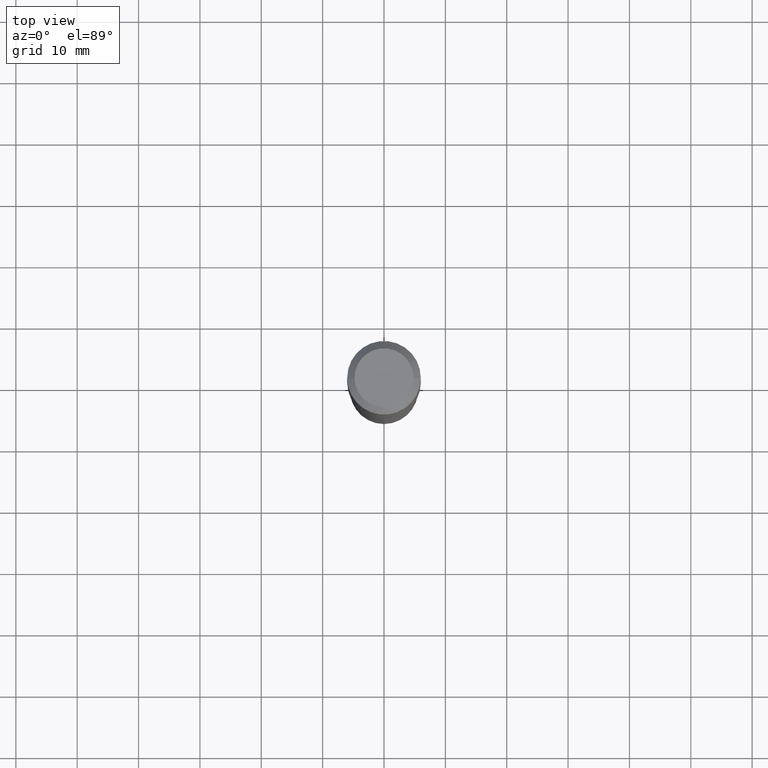
[diagram: clean part render]
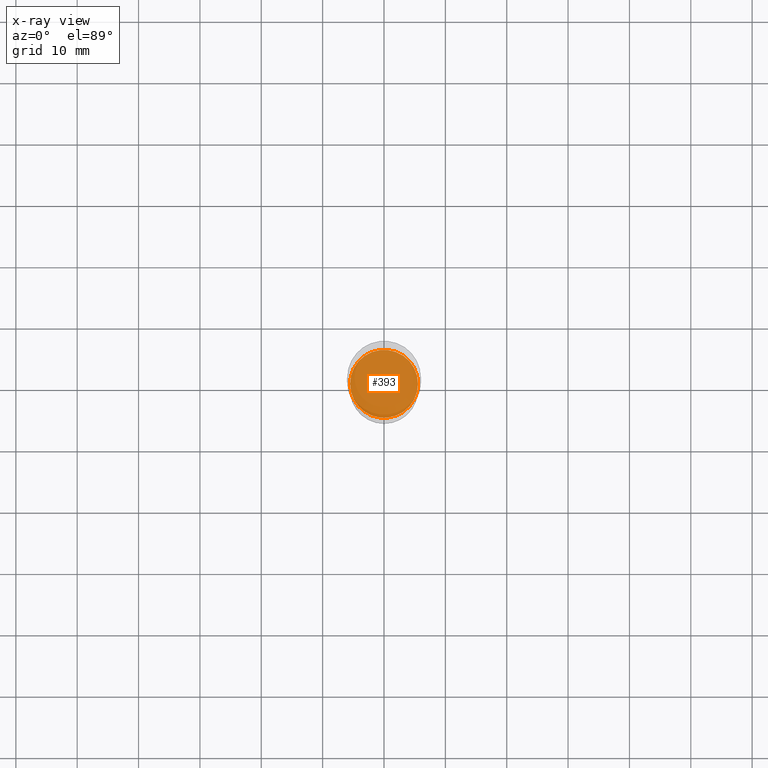
[diagram: x-ray — body ghosted, one internal face saturated and labeled with its STEP entity id]
A machine part, top view, then the same camera in x-ray: the body is ghosted and one INTERNAL B-rep face — a face not visible from any outside direction — is saturated and labeled: STEP entity #393.
In plain terms, the highlighted planar face has unit normal (-0, 0, 1).
Its self-contained STEP definition (entity closure, byte-faithful):
#1 = ORIENTED_EDGE ( 'NONE', *, *, #315, .F. ) ;
#22 = CIRCLE ( 'NONE', #290, 0.2179999999999999993 ) ;
#23 = DIRECTION ( 'NONE',  ( 1.000000000000000000, -6.982962677686270655E-15, 0.000000000000000000 ) ) ;
#32 = DIRECTION ( 'NONE',  ( -2.445468806185136597E-29, 3.491481338843145583E-15, 1.000000000000000000 ) ) ;
#33 = ORIENTED_EDGE ( 'NONE', *, *, #322, .F. ) ;
#61 = AXIS2_PLACEMENT_3D ( 'NONE', #446, #328, #252 ) ;
#71 = CARTESIAN_POINT ( 'NONE',  ( 5.593765347267879611E-29, -7.986414414469808493E-15, -2.287399999999998990 ) ) ;
#100 = DIRECTION ( 'NONE',  ( 1.000000000000000000, -6.982962677686270655E-15, 0.000000000000000000 ) ) ;
#208 = CARTESIAN_POINT ( 'NONE',  ( -0.2179999999999999993, -6.434782023338679089E-15, -2.287399999999998990 ) ) ;
#215 = PLANE ( 'NONE',  #61 ) ;
#220 = EDGE_LOOP ( 'NONE', ( #1, #33 ) ) ;
#221 = DIRECTION ( 'NONE',  ( -2.445468806185136597E-29, 3.491481338843145583E-15, 1.000000000000000000 ) ) ;
#230 = VERTEX_POINT ( 'NONE', #286 ) ;
#235 = AXIS2_PLACEMENT_3D ( 'NONE', #71, #221, #100 ) ;
#252 = DIRECTION ( 'NONE',  ( 1.000000000000000000, -6.982962677686265922E-15, 4.876176775795935793E-29 ) ) ;
#253 = VERTEX_POINT ( 'NONE', #208 ) ;
#286 = CARTESIAN_POINT ( 'NONE',  ( 0.2179999999999999993, -9.508700278205414825E-15, -2.287399999999998990 ) ) ;
#290 = AXIS2_PLACEMENT_3D ( 'NONE', #372, #32, #23 ) ;
#315 = EDGE_CURVE ( 'NONE', #230, #253, #428, .T. ) ;
#322 = EDGE_CURVE ( 'NONE', #253, #230, #22, .T. ) ;
#328 = DIRECTION ( 'NONE',  ( -2.438088387897960049E-29, 3.491481338843145188E-15, 1.000000000000000000 ) ) ;
#372 = CARTESIAN_POINT ( 'NONE',  ( 5.593765347267879611E-29, -7.986414414469808493E-15, -2.287399999999998990 ) ) ;
#393 = ADVANCED_FACE ( 'NONE', ( #456 ), #215, .F. ) ;
#428 = CIRCLE ( 'NONE', #235, 0.2179999999999999993 ) ;
#446 = CARTESIAN_POINT ( 'NONE',  ( 5.593765347267879611E-29, -7.986414414469808493E-15, -2.287399999999998990 ) ) ;
#456 = FACE_OUTER_BOUND ( 'NONE', #220, .T. ) ;